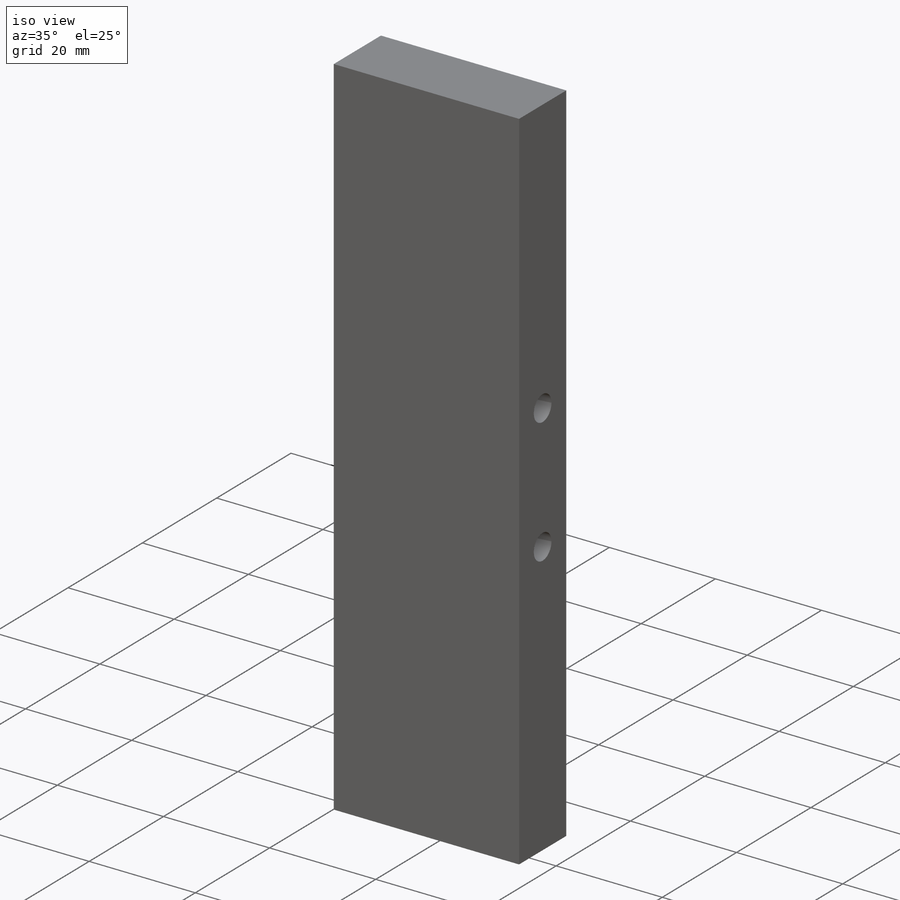
[diagram: iso view]
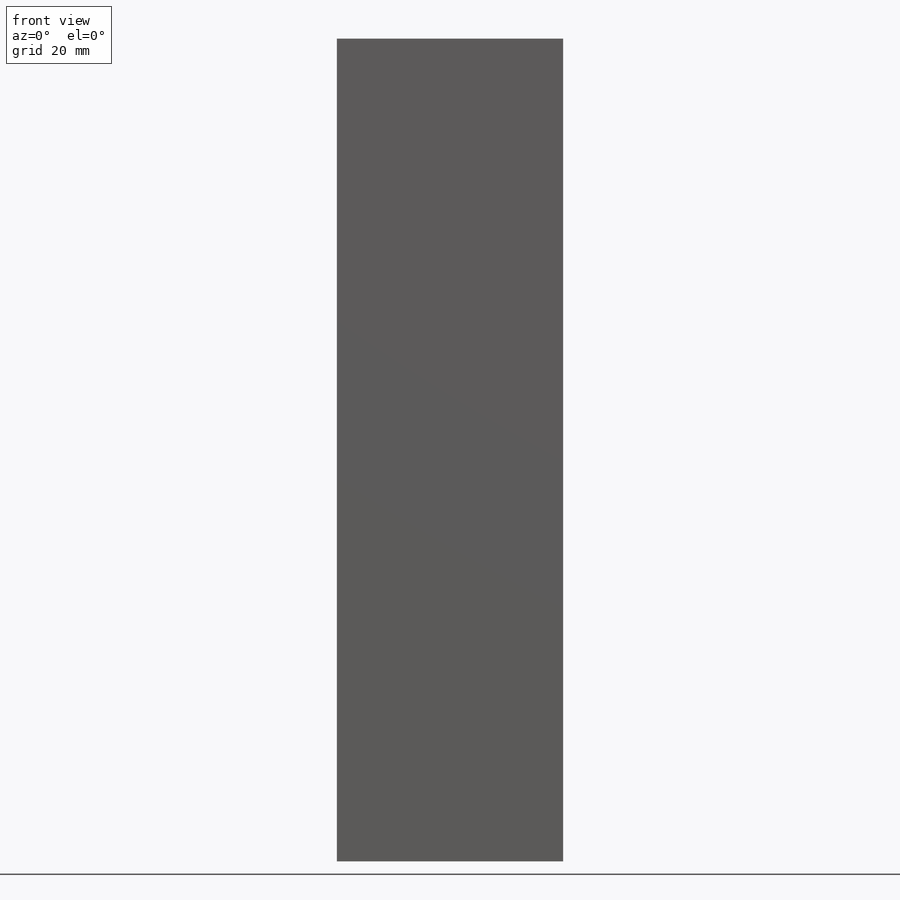
[diagram: front view]
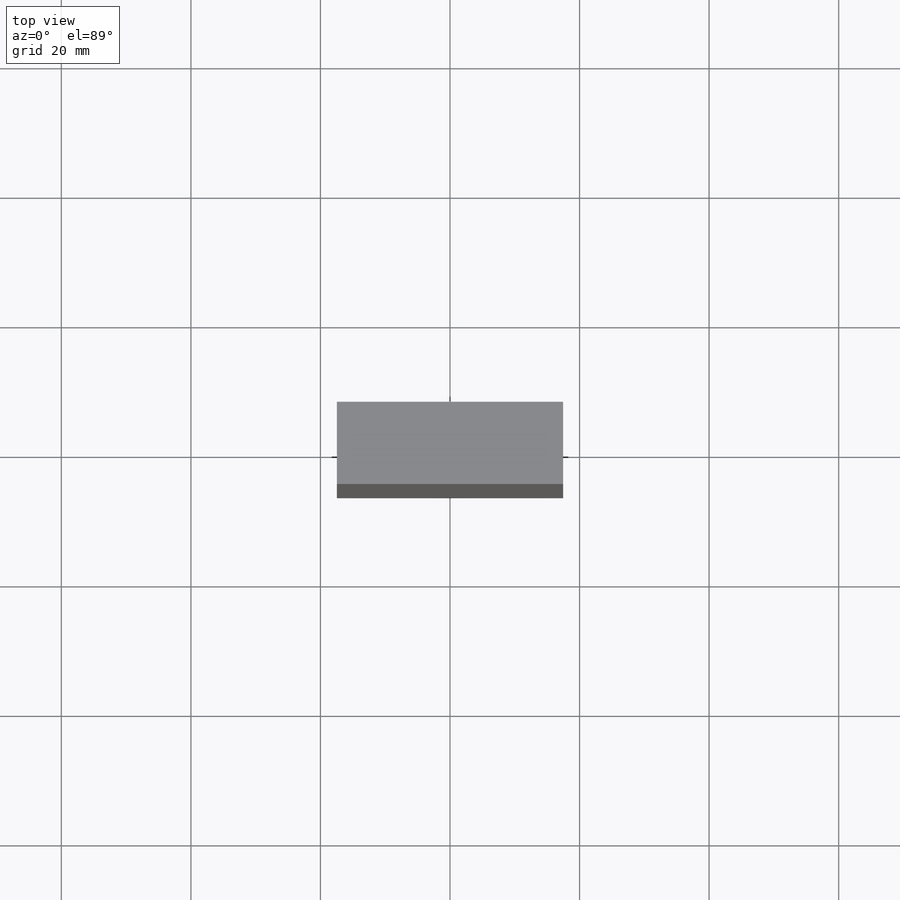
[diagram: top view]
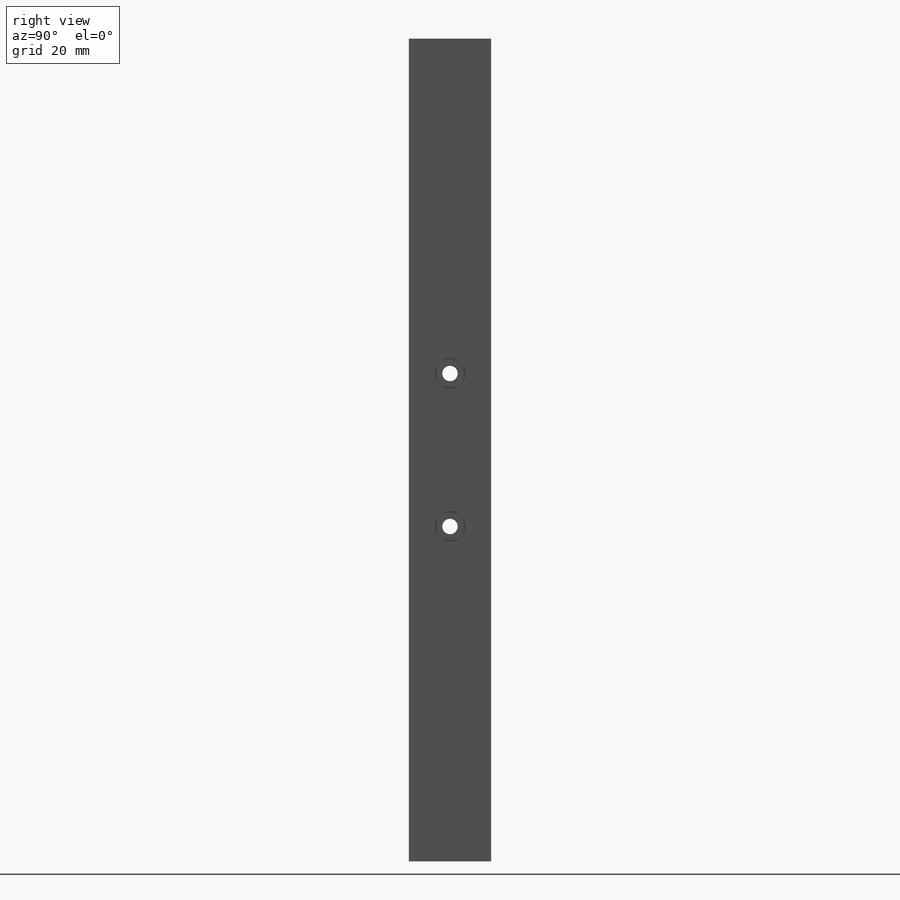
[diagram: right view]
SOLIDWORKS PART (.sldprt)
format: sldprt  version: not decoded by parser v0  size: 224,768 bytes
history: native  units: mm
features: sketch x7, thread x4, cut_extrude x2, hole x2, material x1, extrude x1 (+16 scaffold rows collapsed)
feature tree (33):
  scaffold x16  (default folders/planes/origin — collapsed)
  material  "Material <not specified>"
  sketch  "Sketch2"  dims[D1=127.0mm D2=25.4mm]
  extrude  "Boss-Extrude1"  Depth=12.7mm
  sketch  "Sketch3"  dims[c1.D3=4.7625mm c1.D4=4.7625mm c1.D5=~2.38125mm c1.D6=~2.38125mm c2.D3=4.7625mm c2.D4=4.7625mm c2.D1=19.812mm c2.D2=19.812mm c2.D5=23.622mm]
  cut_extrude  "Cut-Extrude2"  [1 undecoded]
  cut_extrude  "Cut-Extrude3"  [1 undecoded]
  sketch  "Sketch3<4>"  dims[D1=9.525mm]
  hole  "#2-56 Tapped Hole1"  Diameter=1.778mm Depth=10.668mm
  sketch  "Sketch5"
  sketch  "Sketch4"  dims[hole-wizard template sketch: 47 standard entries collapsed; hole parameters kept: c15.Tap Drill Depth=10.668mm c15.D3=~14.816244mm c15.Drill Angle=118.0deg]
  thread  "Hole Thread11"  Diameter=4.318mm  [1 undecoded]
  thread  "Hole Thread12"  Diameter=4.318mm  [1 undecoded]
  hole  "#2-56 Tapped Hole2"  Diameter=1.778mm Depth=10.668mm
  sketch  "Sketch7"
  sketch  "Sketch6"  dims[hole-wizard template sketch: 47 standard entries collapsed; hole parameters kept: c15.Tap Drill Depth=10.668mm c15.D3=~14.816244mm c15.Drill Angle=118.0deg]
  thread  "Hole Thread13"  Diameter=4.318mm  [1 undecoded]
  thread  "Hole Thread14"  Diameter=4.318mm  [1 undecoded]
decode coverage: 12 of 16 modeling features carry decoded parameters
note: ~ marks probable driven/reference dimensions
note: 6 parameter values undecoded
note: suppression state not decoded; provenance and decode notes live in map.json
